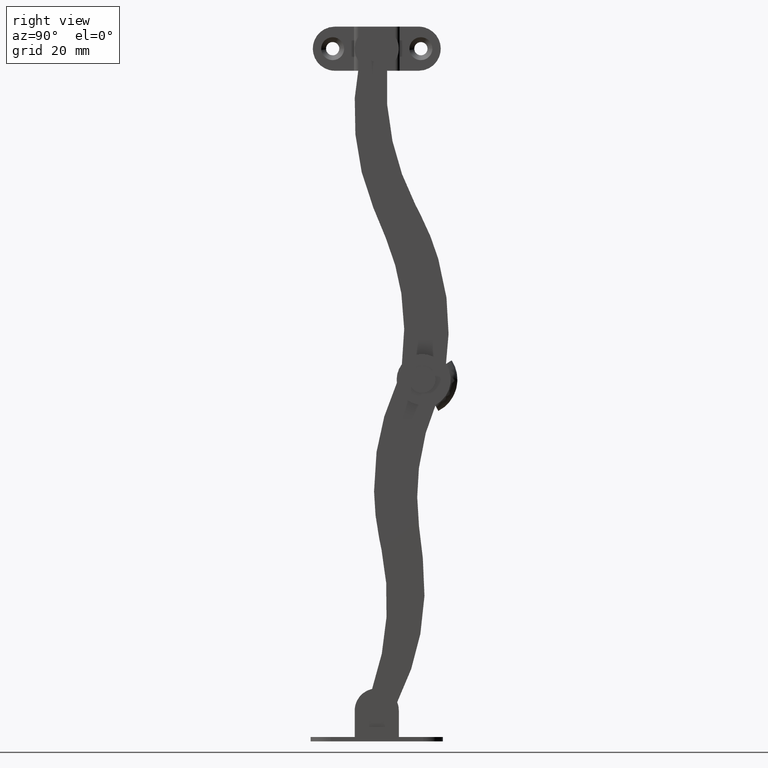
[diagram: clean part render]
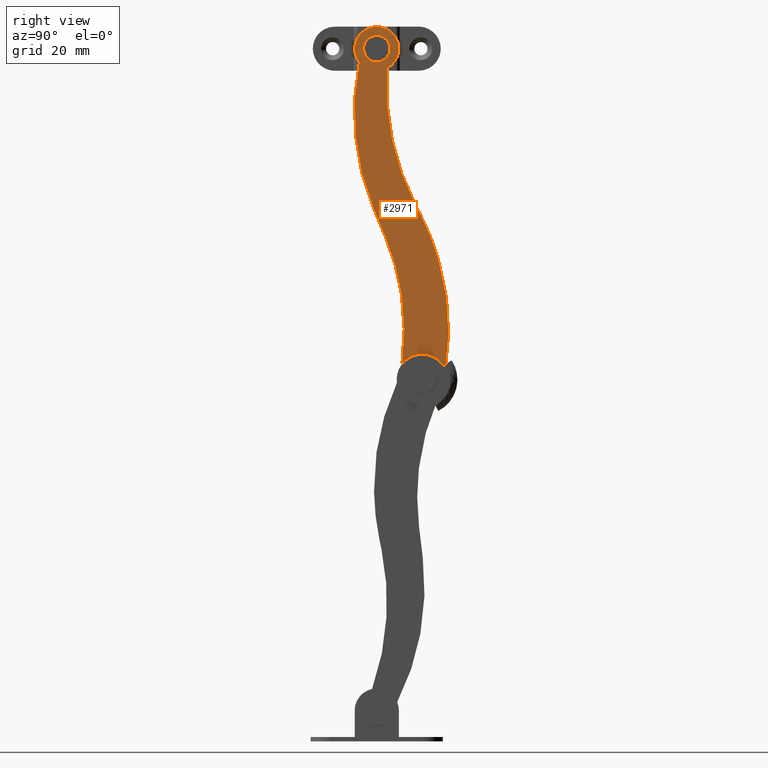
[diagram: same view with one face highlighted and labeled with its STEP entity id]
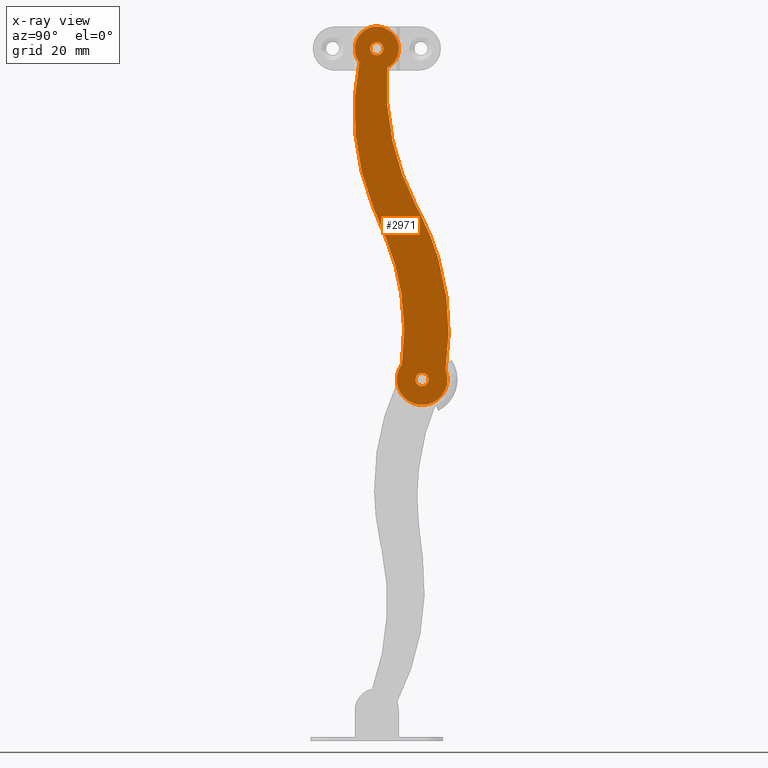
[diagram: x-ray of the same camera — body ghosted, the highlighted face saturated]
A machine part, right view. The second image highlights one B-rep face of the part: STEP entity #2971.
The next image is the same camera in x-ray: the body ghosted, the highlighted face saturated — about 0% of this face is hidden behind the body in this view.
In plain terms, the highlighted face is a freeform B-spline surface patch.
Its self-contained STEP definition (entity closure, byte-faithful):
#2488=CARTESIAN_POINT('',(5.0,-1.489514289480038,75.177081352535851));
#2489=VERTEX_POINT('',#2488);
#2490=CARTESIAN_POINT('',(5.0,0.0,73.500029999999995));
#2491=VERTEX_POINT('',#2490);
#2492=CARTESIAN_POINT('',(5.0,-1.489514289480038,75.177081352535851));
#2493=CARTESIAN_POINT('',(5.000000000000001,-1.500000000000000,75.088866180034415));
#2494=CARTESIAN_POINT('',(5.0,-1.500000000000000,75.000029999999995));
#2495=CARTESIAN_POINT('',(5.000000000000001,-1.500000000000000,73.500029999999995));
#2496=CARTESIAN_POINT('',(5.0,0.0,73.500029999999995));
#2504=(BOUNDED_CURVE()B_SPLINE_CURVE(2,(#2492,#2493,#2494,#2495,#2496),.UNSPECIFIED.,.F.,.U.)B_SPLINE_CURVE_WITH_KNOTS((3,2,3),(0.229562473390673,0.250000000000000,0.500000000000000),.UNSPECIFIED.)CURVE()GEOMETRIC_REPRESENTATION_ITEM()RATIONAL_B_SPLINE_CURVE((0.956026753942936,0.976055948187234,1.0,0.707106781186548,1.0))REPRESENTATION_ITEM(''));
#2505=EDGE_CURVE('',#2489,#2491,#2504,.T.);
#2507=CARTESIAN_POINT('',(5.0,1.497202197543579,74.908457189238959));
#2508=VERTEX_POINT('',#2507);
#2509=CARTESIAN_POINT('',(5.0,0.0,73.500029999999995));
#2510=CARTESIAN_POINT('',(5.0,1.411059097603771,73.500029999999981));
#2511=CARTESIAN_POINT('',(4.999999999999999,1.497202197543579,74.908457189238959));
#2519=(BOUNDED_CURVE()B_SPLINE_CURVE(2,(#2509,#2510,#2511),.UNSPECIFIED.,.F.,.U.)B_SPLINE_CURVE_WITH_KNOTS((3,3),(0.500000000000000,0.739332961905738),.UNSPECIFIED.)CURVE()GEOMETRIC_REPRESENTATION_ITEM()RATIONAL_B_SPLINE_CURVE((1.0,0.719603993677084,0.976072040952597))REPRESENTATION_ITEM(''));
#2520=EDGE_CURVE('',#2491,#2508,#2519,.T.);
#2587=CARTESIAN_POINT('',(5.0,0.0,76.500029999999995));
#2588=VERTEX_POINT('',#2587);
#2589=CARTESIAN_POINT('',(5.0,0.0,76.500029999999995));
#2590=CARTESIAN_POINT('',(4.999999999999999,-1.332261787934959,76.500029999999981));
#2591=CARTESIAN_POINT('',(5.000000000000001,-1.489514289480038,75.177081352535851));
#2599=(BOUNDED_CURVE()B_SPLINE_CURVE(2,(#2589,#2590,#2591),.UNSPECIFIED.,.F.,.U.)B_SPLINE_CURVE_WITH_KNOTS((3,3),(0.0,0.229562473390673),.UNSPECIFIED.)CURVE()GEOMETRIC_REPRESENTATION_ITEM()RATIONAL_B_SPLINE_CURVE((1.0,0.731050832999314,0.956026753942936))REPRESENTATION_ITEM(''));
#2600=EDGE_CURVE('',#2588,#2489,#2599,.T.);
#2634=CARTESIAN_POINT('',(5.0,1.497202197543580,74.908457189238959));
#2635=CARTESIAN_POINT('',(4.999999999999999,1.500000000000000,74.954200853589271));
#2636=CARTESIAN_POINT('',(5.0,1.500000000000000,75.000029999999995));
#2637=CARTESIAN_POINT('',(5.000000000000001,1.500000000000000,76.500029999999995));
#2638=CARTESIAN_POINT('',(5.0,0.0,76.500029999999995));
#2646=(BOUNDED_CURVE()B_SPLINE_CURVE(2,(#2634,#2635,#2636,#2637,#2638),.UNSPECIFIED.,.F.,.U.)B_SPLINE_CURVE_WITH_KNOTS((3,2,3),(0.739332961905738,0.750000000000000,1.0),.UNSPECIFIED.)CURVE()GEOMETRIC_REPRESENTATION_ITEM()RATIONAL_B_SPLINE_CURVE((0.976072040952596,0.987502787509464,1.0,0.707106781186548,1.0))REPRESENTATION_ITEM(''));
#2647=EDGE_CURVE('',#2508,#2588,#2646,.T.);
#2674=CARTESIAN_POINT('',(5.0,8.781328710519761,0.177051352535859));
#2675=VERTEX_POINT('',#2674);
#2676=CARTESIAN_POINT('',(5.0,10.270842999999800,-1.499999999999999));
#2677=VERTEX_POINT('',#2676);
#2678=CARTESIAN_POINT('',(5.0,8.781328710519761,0.177051352535859));
#2679=CARTESIAN_POINT('',(5.0,8.770842999999799,0.088836180034409));
#2680=CARTESIAN_POINT('',(5.0,8.770842999999799,8.881784E-016));
#2681=CARTESIAN_POINT('',(5.000000000000001,8.770842999999799,-1.500000000000000));
#2682=CARTESIAN_POINT('',(5.0,10.270842999999800,-1.499999999999999));
#2690=(BOUNDED_CURVE()B_SPLINE_CURVE(2,(#2678,#2679,#2680,#2681,#2682),.UNSPECIFIED.,.F.,.U.)B_SPLINE_CURVE_WITH_KNOTS((3,2,3),(0.229562473390673,0.250000000000000,0.500000000000000),.UNSPECIFIED.)CURVE()GEOMETRIC_REPRESENTATION_ITEM()RATIONAL_B_SPLINE_CURVE((0.956026753942936,0.976055948187234,1.0,0.707106781186548,1.0))REPRESENTATION_ITEM(''));
#2691=EDGE_CURVE('',#2675,#2677,#2690,.T.);
#2693=CARTESIAN_POINT('',(5.000000000000001,11.768045197543380,-0.091572810761033));
#2694=VERTEX_POINT('',#2693);
#2695=CARTESIAN_POINT('',(5.0,10.270842999999800,-1.499999999999999));
#2696=CARTESIAN_POINT('',(5.0,11.681902097603571,-1.499999999999999));
#2697=CARTESIAN_POINT('',(5.000000000000001,11.768045197543380,-0.091572810761033));
#2705=(BOUNDED_CURVE()B_SPLINE_CURVE(2,(#2695,#2696,#2697),.UNSPECIFIED.,.F.,.U.)B_SPLINE_CURVE_WITH_KNOTS((3,3),(0.500000000000000,0.739332961905738),.UNSPECIFIED.)CURVE()GEOMETRIC_REPRESENTATION_ITEM()RATIONAL_B_SPLINE_CURVE((1.0,0.719603993677084,0.976072040952597))REPRESENTATION_ITEM(''));
#2706=EDGE_CURVE('',#2677,#2694,#2705,.T.);
#2773=CARTESIAN_POINT('',(5.0,10.270842999999800,1.500000000000001));
#2774=VERTEX_POINT('',#2773);
#2775=CARTESIAN_POINT('',(5.0,10.270842999999800,1.500000000000001));
#2776=CARTESIAN_POINT('',(5.000000000000001,8.938581212064841,1.500000000000001));
#2777=CARTESIAN_POINT('',(5.0,8.781328710519761,0.177051352535859));
#2785=(BOUNDED_CURVE()B_SPLINE_CURVE(2,(#2775,#2776,#2777),.UNSPECIFIED.,.F.,.U.)B_SPLINE_CURVE_WITH_KNOTS((3,3),(0.0,0.229562473390673),.UNSPECIFIED.)CURVE()GEOMETRIC_REPRESENTATION_ITEM()RATIONAL_B_SPLINE_CURVE((1.0,0.731050832999314,0.956026753942936))REPRESENTATION_ITEM(''));
#2786=EDGE_CURVE('',#2774,#2675,#2785,.T.);
#2820=CARTESIAN_POINT('',(5.000000000000001,11.768045197543374,-0.091572810761033));
#2821=CARTESIAN_POINT('',(4.999999999999999,11.770842999999800,-0.045829146410721));
#2822=CARTESIAN_POINT('',(5.0,11.770842999999800,8.881784E-016));
#2823=CARTESIAN_POINT('',(5.000000000000001,11.770842999999799,1.500000000000001));
#2824=CARTESIAN_POINT('',(5.0,10.270842999999800,1.500000000000001));
#2832=(BOUNDED_CURVE()B_SPLINE_CURVE(2,(#2820,#2821,#2822,#2823,#2824),.UNSPECIFIED.,.F.,.U.)B_SPLINE_CURVE_WITH_KNOTS((3,2,3),(0.739332961905738,0.750000000000000,1.0),.UNSPECIFIED.)CURVE()GEOMETRIC_REPRESENTATION_ITEM()RATIONAL_B_SPLINE_CURVE((0.976072040952596,0.987502787509464,1.0,0.707106781186548,1.0))REPRESENTATION_ITEM(''));
#2833=EDGE_CURVE('',#2694,#2774,#2832,.T.);
#2838=CARTESIAN_POINT('',(5.0,-6.141935577532943,84.276608034453659));
#2839=CARTESIAN_POINT('',(5.0,17.344838056810591,84.276608034453659));
#2840=CARTESIAN_POINT('',(5.0,-6.141935577532943,-10.032317006579589));
#2841=CARTESIAN_POINT('',(5.0,17.344838056810591,-10.032317006579589));
#2842=B_SPLINE_SURFACE_WITH_KNOTS('',1,1,((#2838,#2840),(#2839,#2841)),.UNSPECIFIED.,.F.,.F.,.U.,(2,2),(2,2),(0.0,23.486773634343528),(0.0,94.308925041033248),.UNSPECIFIED.);
#2843=CARTESIAN_POINT('',(5.0,2.050520562920845,32.095773077190451));
#2844=VERTEX_POINT('',#2843);
#2845=CARTESIAN_POINT('',(5.0,-0.772613999999990,38.943436000000048));
#2846=VERTEX_POINT('',#2845);
#2847=CARTESIAN_POINT('',(5.0,2.050520562920845,32.095773077190451));
#2848=CARTESIAN_POINT('',(5.0,-0.772613999999990,38.943436000000048));
#2849=QUASI_UNIFORM_CURVE('',1,(#2847,#2848),.UNSPECIFIED.,.F.,.U.);
#2850=EDGE_CURVE('',#2844,#2846,#2849,.T.);
#2851=ORIENTED_EDGE('',*,*,#2850,.F.);
#2852=CARTESIAN_POINT('',(5.0,5.690931915818350,3.476624003396400));
#2853=VERTEX_POINT('',#2852);
#2854=CARTESIAN_POINT('',(5.0,5.690931915818350,3.476624003396400));
#2855=CARTESIAN_POINT('',(5.0,7.759846322789088,18.280902169250226));
#2856=CARTESIAN_POINT('',(5.0,2.050520562920863,32.095773077190422));
#2864=(BOUNDED_CURVE()B_SPLINE_CURVE(2,(#2854,#2855,#2856),.UNSPECIFIED.,.F.,.U.)CURVE()GEOMETRIC_REPRESENTATION_ITEM()QUASI_UNIFORM_CURVE()RATIONAL_B_SPLINE_CURVE((1.0,0.964994399481614,1.0))REPRESENTATION_ITEM(''));
#2865=EDGE_CURVE('',#2853,#2844,#2864,.T.);
#2866=ORIENTED_EDGE('',*,*,#2865,.F.);
#2867=CARTESIAN_POINT('',(5.0,15.571643782803150,2.228006072934095));
#2868=VERTEX_POINT('',#2867);
#2869=CARTESIAN_POINT('',(5.0,5.690931915818357,3.476624003396394));
#2870=CARTESIAN_POINT('',(5.000000000000001,2.773698233647095,-0.366377386190532));
#2871=CARTESIAN_POINT('',(5.0,6.051743201180876,-3.906622183882916));
#2872=CARTESIAN_POINT('',(5.000000000000001,9.329788168714655,-7.446866981575298));
#2873=CARTESIAN_POINT('',(5.0,13.385475436905100,-4.833380264677850));
#2874=CARTESIAN_POINT('',(5.000000000000001,17.441162705095554,-2.219893547780402));
#2875=CARTESIAN_POINT('',(5.0,15.571643782803161,2.228006072934101));
#2883=(BOUNDED_CURVE()B_SPLINE_CURVE(2,(#2869,#2870,#2871,#2872,#2873,#2874,#2875),.UNSPECIFIED.,.F.,.U.)B_SPLINE_CURVE_WITH_KNOTS((3,2,2,3),(0.0,0.333333333333333,0.666666666666667,1.0),.UNSPECIFIED.)CURVE()GEOMETRIC_REPRESENTATION_ITEM()RATIONAL_B_SPLINE_CURVE((1.0,0.766044468813316,1.0,0.766044468813316,1.0,0.766044468813316,1.0))REPRESENTATION_ITEM(''));
#2884=EDGE_CURVE('',#2853,#2868,#2883,.T.);
#2885=ORIENTED_EDGE('',*,*,#2884,.T.);
#2886=CARTESIAN_POINT('',(5.0,9.916199000000001,37.365477999999953));
#2887=VERTEX_POINT('',#2886);
#2888=CARTESIAN_POINT('',(5.0,15.571643782803140,2.228006072934092));
#2889=CARTESIAN_POINT('',(5.000000000000001,18.517461404044337,20.726004585878098));
#2890=CARTESIAN_POINT('',(5.0,9.916198999999965,37.365477999999932));
#2898=(BOUNDED_CURVE()B_SPLINE_CURVE(2,(#2888,#2889,#2890),.UNSPECIFIED.,.F.,.U.)CURVE()GEOMETRIC_REPRESENTATION_ITEM()QUASI_UNIFORM_CURVE()RATIONAL_B_SPLINE_CURVE((1.0,0.950016428060900,1.0))REPRESENTATION_ITEM(''));
#2899=EDGE_CURVE('',#2868,#2887,#2898,.T.);
#2900=ORIENTED_EDGE('',*,*,#2899,.T.);
#2901=CARTESIAN_POINT('',(5.0,8.788238437924449,39.547561152818197));
#2902=VERTEX_POINT('',#2901);
#2903=CARTESIAN_POINT('',(5.0,8.788238437924449,39.547561152818197));
#2904=CARTESIAN_POINT('',(5.0,9.916199000000001,37.365477999999953));
#2905=QUASI_UNIFORM_CURVE('',1,(#2903,#2904),.UNSPECIFIED.,.F.,.U.);
#2906=EDGE_CURVE('',#2902,#2887,#2905,.T.);
#2907=ORIENTED_EDGE('',*,*,#2906,.F.);
#2908=CARTESIAN_POINT('',(5.0,2.331784033939465,70.577064983255994));
#2909=VERTEX_POINT('',#2908);
#2910=CARTESIAN_POINT('',(5.0,2.331784033939521,70.577064983255994));
#2911=CARTESIAN_POINT('',(5.0,1.233694848332280,54.162116124947410));
#2912=CARTESIAN_POINT('',(5.0,8.788238437924512,39.547561152818233));
#2920=(BOUNDED_CURVE()B_SPLINE_CURVE(2,(#2910,#2911,#2912),.UNSPECIFIED.,.F.,.U.)CURVE()GEOMETRIC_REPRESENTATION_ITEM()QUASI_UNIFORM_CURVE()RATIONAL_B_SPLINE_CURVE((1.0,0.963250642647689,1.0))REPRESENTATION_ITEM(''));
#2921=EDGE_CURVE('',#2909,#2902,#2920,.T.);
#2922=ORIENTED_EDGE('',*,*,#2921,.F.);
#2923=CARTESIAN_POINT('',(5.0,-3.950962553625680,71.935587842914515));
#2924=VERTEX_POINT('',#2923);
#2925=CARTESIAN_POINT('',(5.0,2.331784033939394,70.577064983256122));
#2926=CARTESIAN_POINT('',(5.0,5.428741448838198,72.209854238941389));
#2927=CARTESIAN_POINT('',(5.0,4.953659066012654,75.678491249743530));
#2928=CARTESIAN_POINT('',(5.0,4.478576683187111,79.147128260545713));
#2929=CARTESIAN_POINT('',(5.0,1.056639708498980,79.887056178954026));
#2930=CARTESIAN_POINT('',(5.0,-2.365297266189150,80.626984097362353));
#2931=CARTESIAN_POINT('',(5.0,-4.230986951245852,77.664493931597946));
#2932=CARTESIAN_POINT('',(5.0,-6.096676636302556,74.702003765833553));
#2933=CARTESIAN_POINT('',(5.0,-3.950962553625690,71.935587842914501));
#2941=(BOUNDED_CURVE()B_SPLINE_CURVE(2,(#2925,#2926,#2927,#2928,#2929,#2930,#2931,#2932,#2933),.UNSPECIFIED.,.F.,.U.)B_SPLINE_CURVE_WITH_KNOTS((3,2,2,2,3),(0.0,0.250000000000000,0.500000000000000,0.750000000000000,1.0),.UNSPECIFIED.)CURVE()GEOMETRIC_REPRESENTATION_ITEM()RATIONAL_B_SPLINE_CURVE((1.0,0.819153351722272,1.0,0.819153351722272,1.0,0.819153351722272,1.0,0.819153351722272,1.0))REPRESENTATION_ITEM(''));
#2942=EDGE_CURVE('',#2909,#2924,#2941,.T.);
#2943=ORIENTED_EDGE('',*,*,#2942,.T.);
#2944=CARTESIAN_POINT('',(5.0,-3.950962553625613,71.935587842914472));
#2945=CARTESIAN_POINT('',(5.000000000000001,-7.374477571912855,54.956606961310584));
#2946=CARTESIAN_POINT('',(5.0,-0.772613999999990,38.943436000000048));
#2954=(BOUNDED_CURVE()B_SPLINE_CURVE(2,(#2944,#2945,#2946),.UNSPECIFIED.,.F.,.U.)CURVE()GEOMETRIC_REPRESENTATION_ITEM()QUASI_UNIFORM_CURVE()RATIONAL_B_SPLINE_CURVE((1.0,0.956800705288628,1.0))REPRESENTATION_ITEM(''));
#2955=EDGE_CURVE('',#2924,#2846,#2954,.T.);
#2956=ORIENTED_EDGE('',*,*,#2955,.T.);
#2957=EDGE_LOOP('',(#2851,#2866,#2885,#2900,#2907,#2922,#2943,#2956));
#2958=FACE_OUTER_BOUND('',#2957,.T.);
#2959=ORIENTED_EDGE('',*,*,#2706,.F.);
#2960=ORIENTED_EDGE('',*,*,#2691,.F.);
#2961=ORIENTED_EDGE('',*,*,#2786,.F.);
#2962=ORIENTED_EDGE('',*,*,#2833,.F.);
#2963=EDGE_LOOP('',(#2959,#2960,#2961,#2962));
#2964=FACE_BOUND('',#2963,.T.);
#2965=ORIENTED_EDGE('',*,*,#2520,.F.);
#2966=ORIENTED_EDGE('',*,*,#2505,.F.);
#2967=ORIENTED_EDGE('',*,*,#2600,.F.);
#2968=ORIENTED_EDGE('',*,*,#2647,.F.);
#2969=EDGE_LOOP('',(#2965,#2966,#2967,#2968));
#2970=FACE_BOUND('',#2969,.T.);
#2971=ADVANCED_FACE('',(#2958,#2964,#2970),#2842,.F.);